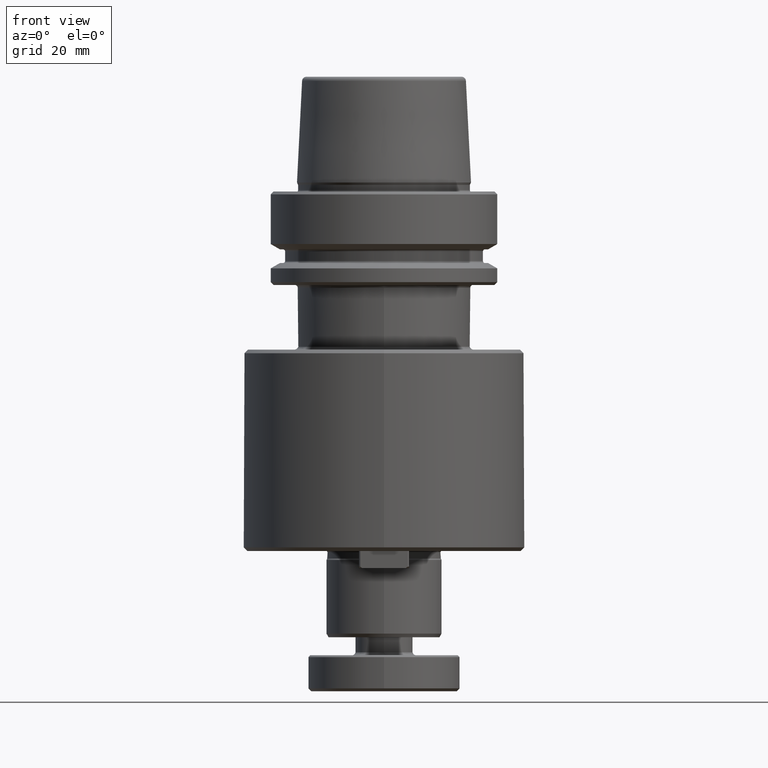
[diagram: clean part render]
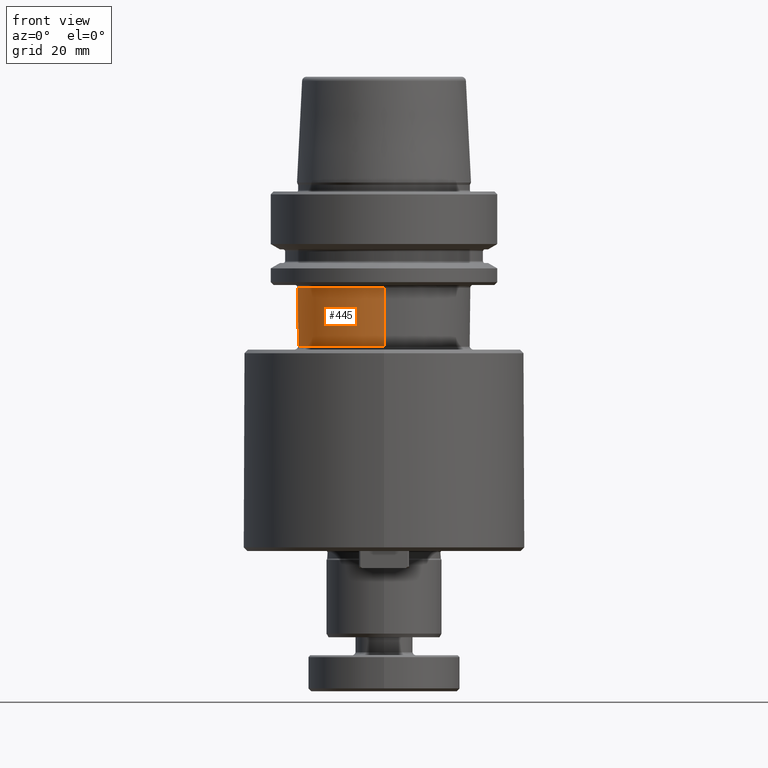
[diagram: same view with one face highlighted and labeled with its STEP entity id]
A machine part, front view. The second image highlights one B-rep face of the part: STEP entity #445.
In plain terms, the highlighted cylindrical surface (partial cylindrical patch) has radius 24 mm, axis along (0, 0, -1).
Its self-contained STEP definition (entity closure, byte-faithful):
#165 = DIRECTION ( 'NONE',  ( 0.0000000000000000000, 1.000000000000000000, 0.0000000000000000000 ) ) ;
#241 = CIRCLE ( 'NONE', #1492, 24.00000000000000000 ) ;
#281 = VERTEX_POINT ( 'NONE', #2435 ) ;
#316 = EDGE_CURVE ( 'NONE', #3078, #1151, #2860, .T. ) ;
#405 = ORIENTED_EDGE ( 'NONE', *, *, #3213, .T. ) ;
#445 = ADVANCED_FACE ( 'NONE', ( #2003 ), #1920, .T. ) ;
#500 = AXIS2_PLACEMENT_3D ( 'NONE', #1064, #2928, #1339 ) ;
#570 = EDGE_CURVE ( 'NONE', #1777, #281, #241, .T. ) ;
#615 = EDGE_CURVE ( 'NONE', #3078, #281, #2984, .T. ) ;
#677 = CARTESIAN_POINT ( 'NONE',  ( -24.00000000000000000, 3.016348688848090700E-015, -26.80000000000000400 ) ) ;
#682 = CARTESIAN_POINT ( 'NONE',  ( 0.0000000000000000000, 24.00000000000000400, -124.0000000000000000 ) ) ;
#843 = DIRECTION ( 'NONE',  ( 0.0000000000000000000, 1.000000000000000000, 0.0000000000000000000 ) ) ;
#1010 = VECTOR ( 'NONE', #2310, 1000.000000000000000 ) ;
#1020 = CARTESIAN_POINT ( 'NONE',  ( 0.0000000000000000000, 3.998846691093428700E-017, -26.80000000000000400 ) ) ;
#1064 = CARTESIAN_POINT ( 'NONE',  ( 0.0000000000000000000, 3.998846691093428700E-017, -26.80000000000000400 ) ) ;
#1099 = VECTOR ( 'NONE', #1230, 1000.000000000000000 ) ;
#1151 = VERTEX_POINT ( 'NONE', #677 ) ;
#1230 = DIRECTION ( 'NONE',  ( 0.0000000000000000000, 4.998558363866749900E-017, -1.000000000000000000 ) ) ;
#1290 = DIRECTION ( 'NONE',  ( 0.0000000000000000000, 1.000000000000000000, 0.0000000000000000000 ) ) ;
#1339 = DIRECTION ( 'NONE',  ( 0.0000000000000000000, 1.000000000000000000, 0.0000000000000000000 ) ) ;
#1385 = CARTESIAN_POINT ( 'NONE',  ( 0.0000000000000000000, 4.898587196589415400E-015, -124.0000000000000000 ) ) ;
#1492 = AXIS2_PLACEMENT_3D ( 'NONE', #3328, #1768, #165 ) ;
#1715 = ORIENTED_EDGE ( 'NONE', *, *, #2413, .T. ) ;
#1768 = DIRECTION ( 'NONE',  ( -0.0000000000000000000, -4.998558363866749900E-017, 1.000000000000000000 ) ) ;
#1777 = VERTEX_POINT ( 'NONE', #2060 ) ;
#1800 = ORIENTED_EDGE ( 'NONE', *, *, #570, .T. ) ;
#1920 = CYLINDRICAL_SURFACE ( 'NONE', #2625, 24.00000000000000000 ) ;
#1934 = DIRECTION ( 'NONE',  ( 0.0000000000000000000, 4.998558363866749900E-017, -1.000000000000000000 ) ) ;
#2003 = FACE_OUTER_BOUND ( 'NONE', #3084, .T. ) ;
#2015 = CIRCLE ( 'NONE', #2663, 24.00000000000000000 ) ;
#2060 = CARTESIAN_POINT ( 'NONE',  ( 0.0000000000000000000, 24.00000000000000000, -43.20000000000000300 ) ) ;
#2300 = CARTESIAN_POINT ( 'NONE',  ( 2.939152317953647900E-015, -23.99999999999999600, -124.0000000000000000 ) ) ;
#2310 = DIRECTION ( 'NONE',  ( 0.0000000000000000000, 4.998558363866749900E-017, -1.000000000000000000 ) ) ;
#2413 = EDGE_CURVE ( 'NONE', #2587, #1777, #3348, .T. ) ;
#2435 = CARTESIAN_POINT ( 'NONE',  ( 2.939152317953647900E-015, -24.00000000000000000, -43.20000000000000300 ) ) ;
#2587 = VERTEX_POINT ( 'NONE', #3399 ) ;
#2625 = AXIS2_PLACEMENT_3D ( 'NONE', #1385, #1934, #843 ) ;
#2663 = AXIS2_PLACEMENT_3D ( 'NONE', #1020, #2876, #1290 ) ;
#2860 = CIRCLE ( 'NONE', #500, 24.00000000000000000 ) ;
#2876 = DIRECTION ( 'NONE',  ( 0.0000000000000000000, 4.998558363866749900E-017, -1.000000000000000000 ) ) ;
#2928 = DIRECTION ( 'NONE',  ( 0.0000000000000000000, 4.998558363866749900E-017, -1.000000000000000000 ) ) ;
#2984 = LINE ( 'NONE', #2300, #1099 ) ;
#3078 = VERTEX_POINT ( 'NONE', #3284 ) ;
#3084 = EDGE_LOOP ( 'NONE', ( #3088, #3353, #405, #1715, #1800 ) ) ;
#3088 = ORIENTED_EDGE ( 'NONE', *, *, #615, .F. ) ;
#3213 = EDGE_CURVE ( 'NONE', #1151, #2587, #2015, .T. ) ;
#3284 = CARTESIAN_POINT ( 'NONE',  ( 2.939152317953647900E-015, -24.00000000000000000, -26.80000000000000400 ) ) ;
#3328 = CARTESIAN_POINT ( 'NONE',  ( 0.0000000000000000000, 5.996540572075737800E-032, -43.20000000000000300 ) ) ;
#3348 = LINE ( 'NONE', #682, #1010 ) ;
#3353 = ORIENTED_EDGE ( 'NONE', *, *, #316, .T. ) ;
#3399 = CARTESIAN_POINT ( 'NONE',  ( 0.0000000000000000000, 24.00000000000000000, -26.80000000000000400 ) ) ;